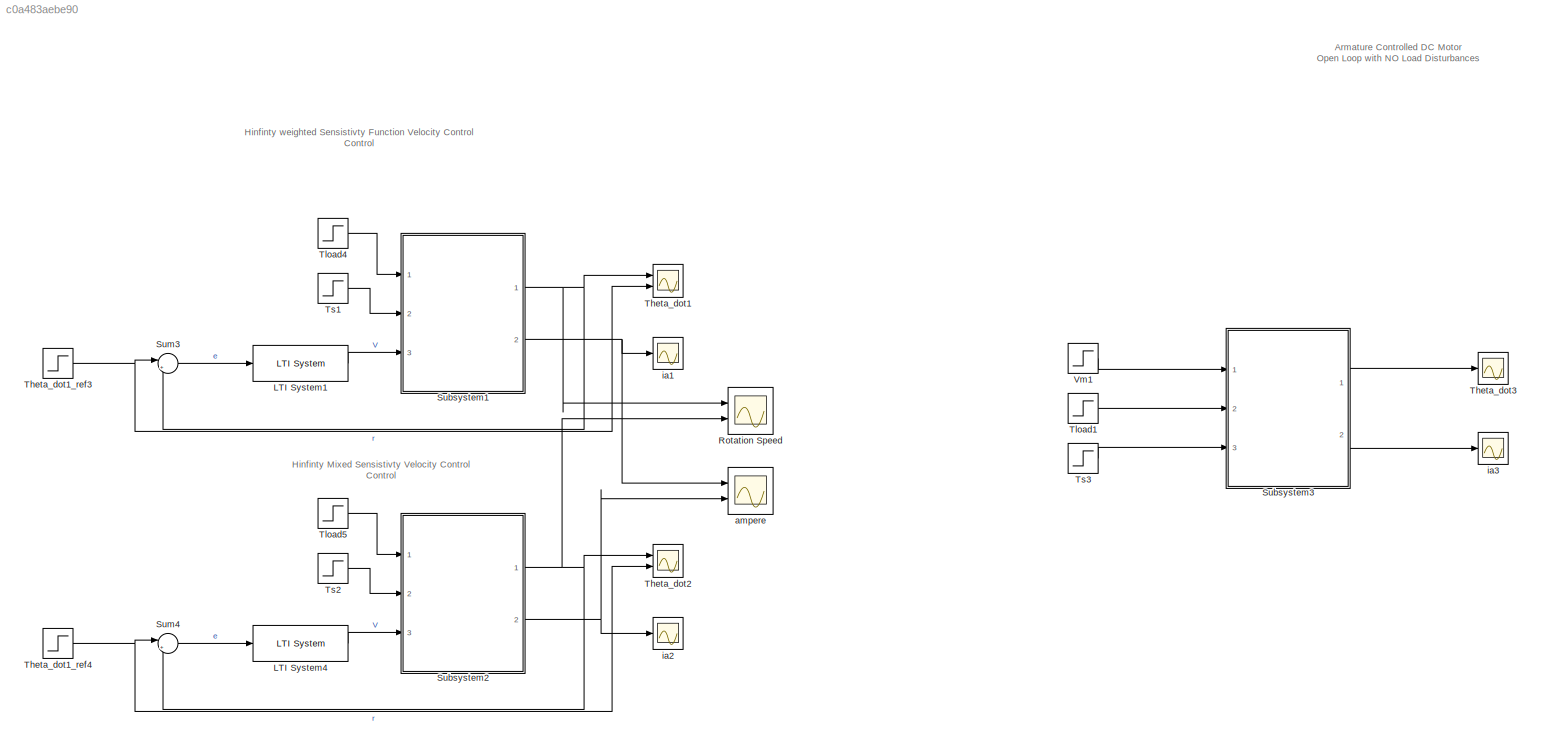
MODEL slx_c0a483aebe90
KIND model
CONFIG AbsTol = auto
CONFIG EnableMultiTasking = off
CONFIG FixedStep = auto
CONFIG MaxStep = auto
CONFIG MinStep = auto
CONFIG RelTol = 1e-3
CONFIG SampleTimeConstraint = Unconstrained
CONFIG SolverName = VariableStepAuto
CONFIG StartTime = 0.0
CONFIG StopTime = 10
BLOCK [Reference] LTI System1  REF=cstblocks/LTI System
  Ports = [1, 1]
  SourceBlock = cstblocks/LTI System
  SourceProductBaseCode = CT
  SourceType = LTI Block
BLOCK [Reference] LTI System4  REF=cstblocks/LTI System
  Ports = [1, 1]
  SourceBlock = cstblocks/LTI System
  SourceProductBaseCode = CT
  SourceType = LTI Block
BLOCK [Scope] Rotation Speed
  Floating = off
  NumInputPorts = 2
  Ports = [2]
  ScopeSpecificationString = Simulink.scopes.TimeScopeBlockCfg('CurrentConfiguration', extmgr.ConfigurationSet(extmgr.Configuration('Core','General UI',true,'FigureColor',[1 1 1]),extmgr.Configuration('Core','Source UI',true),extmgr.Configuration('Sources','WiredSimulink',true,'DataLoggingVariableName','ScopeData5'),extmgr.Configuration('Visuals','Time Domain',true,'SerializedDisplays',{struct('MinYLimReal','-145547.57551','M...<+2168ch>
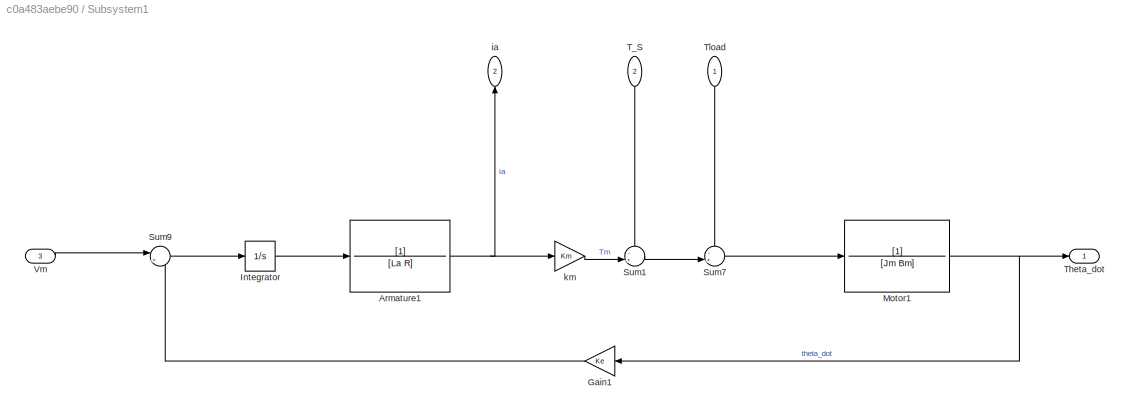
BLOCK [SubSystem] Subsystem1
  Ports = [3, 2]
  RequestExecContextInheritance = off
BLOCK [TransferFcn] Subsystem1/Armature1
  Denominator = [La R]
BLOCK [Gain] Subsystem1/Gain1
  Gain = Ke
  NameLocation = top
BLOCK [Integrator] Subsystem1/Integrator
  Ports = [1, 1]
BLOCK [TransferFcn] Subsystem1/Motor1
  Denominator = [Jm Bm]
BLOCK [Sum] Subsystem1/Sum1
  Inputs = -+|
  Ports = [2, 1]
BLOCK [Sum] Subsystem1/Sum7
  Inputs = -+|
  Ports = [2, 1]
BLOCK [Sum] Subsystem1/Sum9
  Inputs = |+-
  Ports = [2, 1]
BLOCK [Inport] Subsystem1/T_S
  NameLocation = left
  Port = 2
BLOCK [Outport] Subsystem1/Theta_dot
BLOCK [Inport] Subsystem1/Tload
  NameLocation = left
BLOCK [Inport] Subsystem1/Vm
  Port = 3
BLOCK [Outport] Subsystem1/ia
  NameLocation = right
  Port = 2
BLOCK [Gain] Subsystem1/km
  Gain = Km
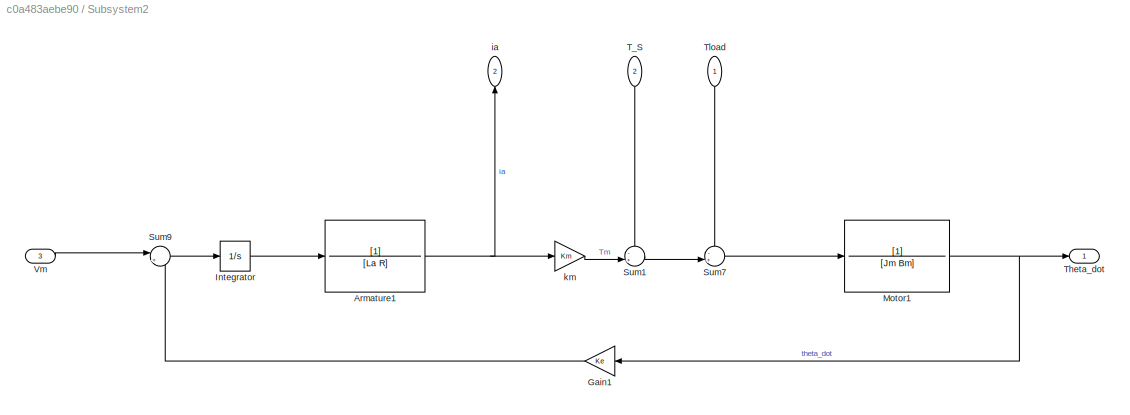
BLOCK [SubSystem] Subsystem2
  Ports = [3, 2]
  RequestExecContextInheritance = off
BLOCK [TransferFcn] Subsystem2/Armature1
  Denominator = [La R]
BLOCK [Gain] Subsystem2/Gain1
  Gain = Ke
  NameLocation = top
BLOCK [Integrator] Subsystem2/Integrator
  Ports = [1, 1]
BLOCK [TransferFcn] Subsystem2/Motor1
  Denominator = [Jm Bm]
BLOCK [Sum] Subsystem2/Sum1
  Inputs = -+|
  Ports = [2, 1]
BLOCK [Sum] Subsystem2/Sum7
  Inputs = -+|
  Ports = [2, 1]
BLOCK [Sum] Subsystem2/Sum9
  Inputs = |+-
  Ports = [2, 1]
BLOCK [Inport] Subsystem2/T_S
  NameLocation = left
  Port = 2
BLOCK [Outport] Subsystem2/Theta_dot
BLOCK [Inport] Subsystem2/Tload
  NameLocation = left
BLOCK [Inport] Subsystem2/Vm
  Port = 3
BLOCK [Outport] Subsystem2/ia
  NameLocation = right
  Port = 2
BLOCK [Gain] Subsystem2/km
  Gain = Km
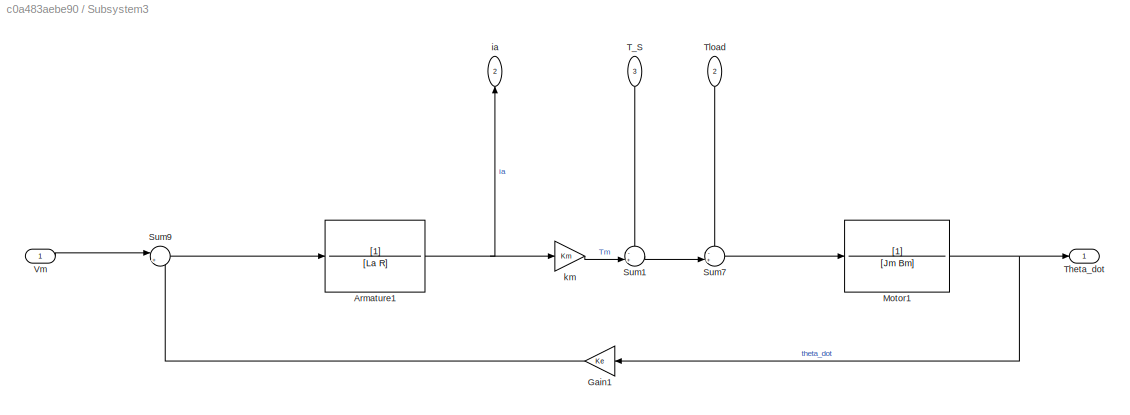
BLOCK [SubSystem] Subsystem3
  Ports = [3, 2]
  RequestExecContextInheritance = off
BLOCK [TransferFcn] Subsystem3/Armature1
  Denominator = [La R]
BLOCK [Gain] Subsystem3/Gain1
  Gain = Ke
  NameLocation = top
BLOCK [TransferFcn] Subsystem3/Motor1
  Denominator = [Jm Bm]
BLOCK [Sum] Subsystem3/Sum1
  Inputs = -+|
  Ports = [2, 1]
BLOCK [Sum] Subsystem3/Sum7
  Inputs = -+|
  Ports = [2, 1]
BLOCK [Sum] Subsystem3/Sum9
  Inputs = |+-
  Ports = [2, 1]
BLOCK [Inport] Subsystem3/T_S
  NameLocation = left
  Port = 3
BLOCK [Outport] Subsystem3/Theta_dot
BLOCK [Inport] Subsystem3/Tload
  NameLocation = left
  Port = 2
BLOCK [Inport] Subsystem3/Vm
BLOCK [Outport] Subsystem3/ia
  NameLocation = right
  Port = 2
BLOCK [Gain] Subsystem3/km
  Gain = Km
BLOCK [Sum] Sum3
  Inputs = |+-
  Ports = [2, 1]
BLOCK [Sum] Sum4
  Inputs = |+-
  Ports = [2, 1]
BLOCK [Scope] Theta_dot1
  Floating = off
  NumInputPorts = 2
  Ports = [2]
  ScopeSpecificationString = Simulink.scopes.TimeScopeBlockCfg('CurrentConfiguration', extmgr.ConfigurationSet(extmgr.Configuration('Core','General UI',true),extmgr.Configuration('Core','Source UI',true),extmgr.Configuration('Sources','WiredSimulink',true,'DataLoggingVariableName','ScopeData1'),extmgr.Configuration('Visuals','Time Domain',true,'SerializedDisplays',{struct('MinYLimReal','-25632.70297','MaxYLimReal','46950.0759...<+1490ch>
BLOCK [Step] Theta_dot1_ref3
  After = 20000
  SampleTime = 0
  Time = 0
BLOCK [Step] Theta_dot1_ref4
  After = 20000
  SampleTime = 0
  Time = 0
BLOCK [Scope] Theta_dot2
  Floating = off
  NumInputPorts = 2
  Ports = [2]
  ScopeSpecificationString = Simulink.scopes.TimeScopeBlockCfg('CurrentConfiguration', extmgr.ConfigurationSet(extmgr.Configuration('Core','General UI',true),extmgr.Configuration('Core','Source UI',true),extmgr.Configuration('Sources','WiredSimulink',true,'DataLoggingVariableName','ScopeData3'),extmgr.Configuration('Visuals','Time Domain',true,'SerializedDisplays',{struct('MinYLimReal','-4634.85332','MaxYLimReal','35764.50694...<+1486ch>
BLOCK [Scope] Theta_dot3
  Floating = off
  NumInputPorts = 1
  Ports = [1]
  ScopeSpecificationString = Simulink.scopes.TimeScopeBlockCfg('CurrentConfiguration', extmgr.ConfigurationSet(extmgr.Configuration('Core','General UI',true),extmgr.Configuration('Core','Source UI',true),extmgr.Configuration('Sources','WiredSimulink',true,'DataLoggingVariableName','ScopeData7'),extmgr.Configuration('Visuals','Time Domain',true,'SerializedDisplays',{struct('MinYLimReal','-14764.92021','MaxYLimReal','132881.725...<+1490ch>
BLOCK [Step] Tload1
  After = 2.62*10^-3
  SampleTime = 0
  Time = 0
BLOCK [Step] Tload4
  After = 2.36*10^-3
  SampleTime = 0
  Time = 0
BLOCK [Step] Tload5
  After = 2.6*10^-3
  SampleTime = 0
  Time = 0
BLOCK [Step] Ts1
  After = 6.7*10^-3
  SampleTime = 0
  Time = 0
BLOCK [Step] Ts2
  After = 6.7*10^-3
  SampleTime = 0
  Time = 0
BLOCK [Step] Ts3
  After = 0
  SampleTime = 0
  Time = 0
BLOCK [Step] Vm1
  After = 12
  SampleTime = 0
  Time = 0
BLOCK [Scope] ampere
  Floating = off
  NumInputPorts = 2
  Ports = [2]
  ScopeSpecificationString = Simulink.scopes.TimeScopeBlockCfg('CurrentConfiguration', extmgr.ConfigurationSet(extmgr.Configuration('Core','General UI',true,'FigureColor',[1 1 1]),extmgr.Configuration('Core','Source UI',true),extmgr.Configuration('Sources','WiredSimulink',true,'DataLoggingVariableName','ScopeData1'),extmgr.Configuration('Visuals','Time Domain',true,'SerializedDisplays',{struct('MinYLimReal','-145547.57551','M...<+2128ch>
BLOCK [Scope] ia1
  Floating = off
  NumInputPorts = 1
  Ports = [1]
  ScopeSpecificationString = Simulink.scopes.TimeScopeBlockCfg('CurrentConfiguration', extmgr.ConfigurationSet(extmgr.Configuration('Core','General UI',true),extmgr.Configuration('Core','Source UI',true),extmgr.Configuration('Sources','WiredSimulink',true,'DataLoggingVariableName','ScopeData2'),extmgr.Configuration('Visuals','Time Domain',true,'SerializedDisplays',{struct('MinYLimReal','-1.49299','MaxYLimReal','13.43687','YLa...<+1376ch>
BLOCK [Scope] ia2
  Floating = off
  NumInputPorts = 1
  Ports = [1]
  ScopeSpecificationString = Simulink.scopes.TimeScopeBlockCfg('CurrentConfiguration', extmgr.ConfigurationSet(extmgr.Configuration('Core','General UI',true),extmgr.Configuration('Core','Source UI',true),extmgr.Configuration('Sources','WiredSimulink',true,'DataLoggingVariableName','ScopeData4'),extmgr.Configuration('Visuals','Time Domain',true,'SerializedDisplays',{struct('MinYLimReal','-25.16859','MaxYLimReal','16.63939','YL...<+1450ch>
BLOCK [Scope] ia3
  Floating = off
  NumInputPorts = 1
  Ports = [1]
  ScopeSpecificationString = Simulink.scopes.TimeScopeBlockCfg('CurrentConfiguration', extmgr.ConfigurationSet(extmgr.Configuration('Core','General UI',true),extmgr.Configuration('Core','Source UI',true),extmgr.Configuration('Sources','WiredSimulink',true,'DataLoggingVariableName','ScopeData8'),extmgr.Configuration('Visuals','Time Domain',true,'SerializedDisplays',{struct('MinYLimReal','-0.34401','MaxYLimReal','3.09612','YLab...<+1371ch>
ANNOTATION (root): Armature Controlled DC Motor Open Loop with NO Load Disturbances
ANNOTATION (root): Hinfinty Mixed Sensistivty Velocity Control Control
ANNOTATION (root): Hinfinty weighted Sensistivty Function Velocity Control Control
LINE LTI System1:1 -> Subsystem1:3
LINE LTI System4:1 -> Subsystem2:3
NET Subsystem1/Armature1:1 -> Subsystem1/ia:1, Subsystem1/km:1
LINE Subsystem1/Gain1:1 -> Subsystem1/Sum9:2
LINE Subsystem1/Integrator:1 -> Subsystem1/Armature1:1
NET Subsystem1/Motor1:1 -> Subsystem1/Gain1:1, Subsystem1/Theta_dot:1
LINE Subsystem1/Sum1:1 -> Subsystem1/Sum7:2
LINE Subsystem1/Sum7:1 -> Subsystem1/Motor1:1
LINE Subsystem1/Sum9:1 -> Subsystem1/Integrator:1
LINE Subsystem1/T_S:1 -> Subsystem1/Sum1:1
LINE Subsystem1/Tload:1 -> Subsystem1/Sum7:1
LINE Subsystem1/Vm:1 -> Subsystem1/Sum9:1
LINE Subsystem1/km:1 -> Subsystem1/Sum1:2
NET Subsystem1:1 -> Rotation Speed:1, Sum3:2, Theta_dot1:1
NET Subsystem1:2 -> ampere:1, ia1:1
NET Subsystem2/Armature1:1 -> Subsystem2/ia:1, Subsystem2/km:1
LINE Subsystem2/Gain1:1 -> Subsystem2/Sum9:2
LINE Subsystem2/Integrator:1 -> Subsystem2/Armature1:1
NET Subsystem2/Motor1:1 -> Subsystem2/Gain1:1, Subsystem2/Theta_dot:1
LINE Subsystem2/Sum1:1 -> Subsystem2/Sum7:2
LINE Subsystem2/Sum7:1 -> Subsystem2/Motor1:1
LINE Subsystem2/Sum9:1 -> Subsystem2/Integrator:1
LINE Subsystem2/T_S:1 -> Subsystem2/Sum1:1
LINE Subsystem2/Tload:1 -> Subsystem2/Sum7:1
LINE Subsystem2/Vm:1 -> Subsystem2/Sum9:1
LINE Subsystem2/km:1 -> Subsystem2/Sum1:2
NET Subsystem2:1 -> Rotation Speed:2, Sum4:2, Theta_dot2:1
NET Subsystem2:2 -> ampere:2, ia2:1
NET Subsystem3/Armature1:1 -> Subsystem3/ia:1, Subsystem3/km:1
LINE Subsystem3/Gain1:1 -> Subsystem3/Sum9:2
NET Subsystem3/Motor1:1 -> Subsystem3/Gain1:1, Subsystem3/Theta_dot:1
LINE Subsystem3/Sum1:1 -> Subsystem3/Sum7:2
LINE Subsystem3/Sum7:1 -> Subsystem3/Motor1:1
LINE Subsystem3/Sum9:1 -> Subsystem3/Armature1:1
LINE Subsystem3/T_S:1 -> Subsystem3/Sum1:1
LINE Subsystem3/Tload:1 -> Subsystem3/Sum7:1
LINE Subsystem3/Vm:1 -> Subsystem3/Sum9:1
LINE Subsystem3/km:1 -> Subsystem3/Sum1:2
LINE Subsystem3:1 -> Theta_dot3:1
LINE Subsystem3:2 -> ia3:1
LINE Sum3:1 -> LTI System1:1
LINE Sum4:1 -> LTI System4:1
NET Theta_dot1_ref3:1 -> Sum3:1, Theta_dot1:2
NET Theta_dot1_ref4:1 -> Sum4:1, Theta_dot2:2
LINE Tload1:1 -> Subsystem3:2
LINE Tload4:1 -> Subsystem1:1
LINE Tload5:1 -> Subsystem2:1
LINE Ts1:1 -> Subsystem1:2
LINE Ts2:1 -> Subsystem2:2
LINE Ts3:1 -> Subsystem3:3
LINE Vm1:1 -> Subsystem3:1
note: NET lines group one-source signal fan-out (src -> all destinations, sorted); 1:1 wires keep LINE
